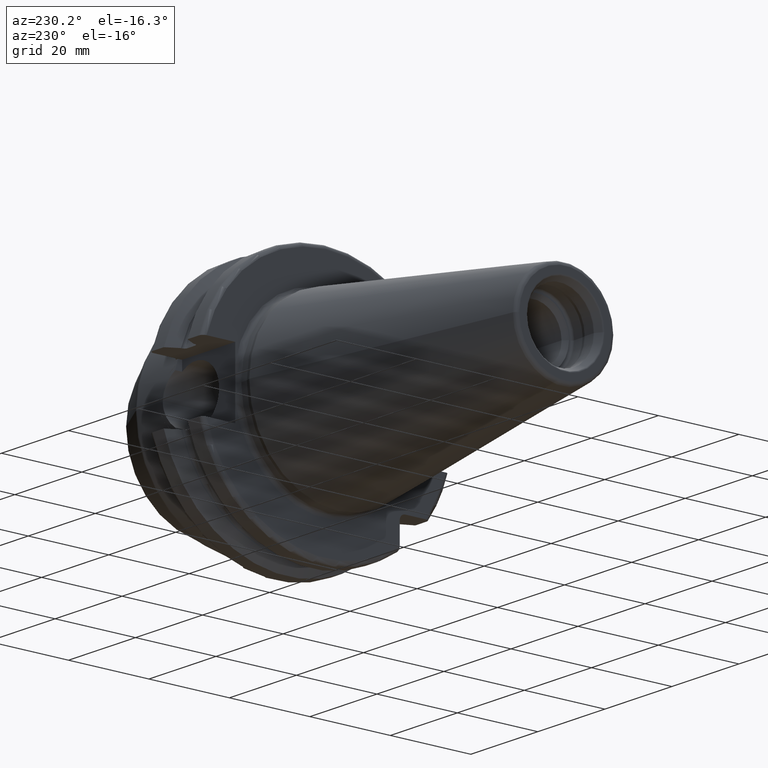
[diagram: clean part render]
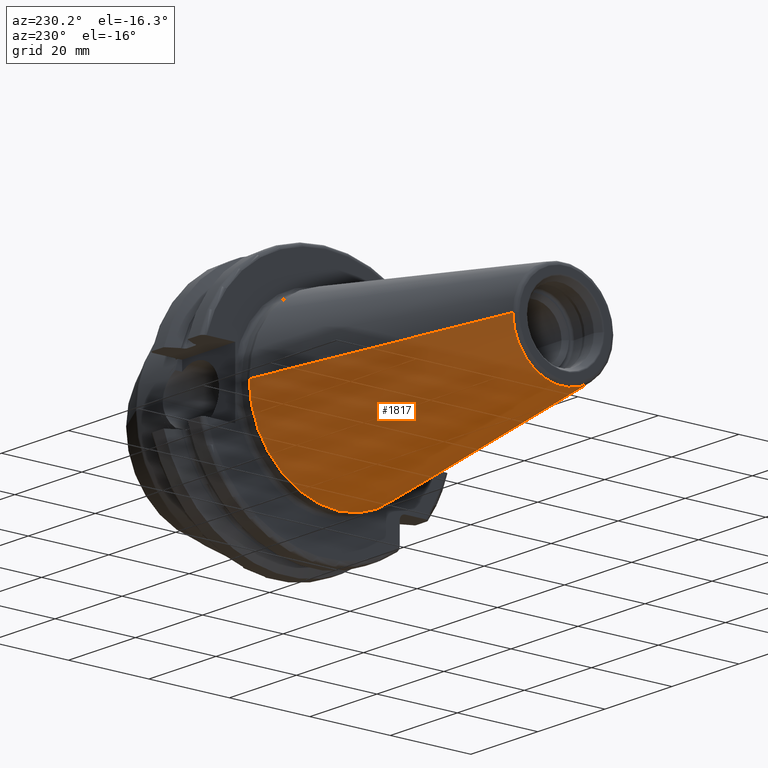
[diagram: same view with one face highlighted and labeled with its STEP entity id]
A machine part, auxiliary view. The second image highlights one B-rep face of the part: STEP entity #1817.
In plain terms, the highlighted conical surface has half-angle 8.298 deg.
Its self-contained STEP definition (entity closure, byte-faithful):
#32=CARTESIAN_POINT('',(-6.743710273571E1,0.E0,0.E0));
#33=DIRECTION('',(-1.E0,0.E0,0.E0));
#34=DIRECTION('',(0.E0,1.E0,0.E0));
#35=AXIS2_PLACEMENT_3D('',#32,#33,#34);
#47=DIRECTION('',(-9.895312636440E-1,-1.443186691705E-1,0.E0));
#48=VECTOR('',#47,6.765568998391E1);
#49=CARTESIAN_POINT('',(-4.896823332305E-1,2.215358204157E1,0.E0));
#50=LINE('',#49,#48);
#51=DIRECTION('',(-9.895312636440E-1,1.443186691705E-1,0.E0));
#52=VECTOR('',#51,6.765568998391E1);
#53=CARTESIAN_POINT('',(-4.896823332305E-1,-2.215358204157E1,0.E0));
#54=LINE('',#53,#52);
#55=CARTESIAN_POINT('',(-4.896823332305E-1,0.E0,0.E0));
#56=DIRECTION('',(-1.E0,0.E0,0.E0));
#57=DIRECTION('',(0.E0,1.E0,0.E0));
#58=AXIS2_PLACEMENT_3D('',#55,#56,#57);
#1463=CARTESIAN_POINT('',(-6.743710273571E1,1.238960290128E1,0.E0));
#1465=VERTEX_POINT('',#1463);
#1467=CARTESIAN_POINT('',(-6.743710273571E1,-1.238960290128E1,0.E0));
#1469=VERTEX_POINT('',#1467);
#1525=CARTESIAN_POINT('',(-4.896823332305E-1,2.215358204157E1,0.E0));
#1526=VERTEX_POINT('',#1525);
#1527=CARTESIAN_POINT('',(-4.896823332305E-1,-2.215358204157E1,0.E0));
#1528=VERTEX_POINT('',#1527);
#1805=CARTESIAN_POINT('',(-3.396339253447E1,0.E0,0.E0));
#1806=DIRECTION('',(1.E0,0.E0,0.E0));
#1807=DIRECTION('',(0.E0,-1.E0,0.E0));
#1808=AXIS2_PLACEMENT_3D('',#1805,#1806,#1807);
#1809=CONICAL_SURFACE('',#1808,1.727159247143E1,8.297826828206E0);
#1810=ORIENTED_EDGE('',*,*,#1795,.T.);
#1811=ORIENTED_EDGE('',*,*,#1772,.T.);
#1812=ORIENTED_EDGE('',*,*,#1799,.F.);
#1814=ORIENTED_EDGE('',*,*,#1813,.F.);
#1815=EDGE_LOOP('',(#1810,#1811,#1812,#1814));
#1816=FACE_OUTER_BOUND('',#1815,.F.);
#1817=ADVANCED_FACE('',(#1816),#1809,.T.);
#36=CIRCLE('',#35,1.238960290128E1);
#59=CIRCLE('',#58,2.215358204157E1);
#1772=EDGE_CURVE('',#1465,#1469,#36,.T.);
#1795=EDGE_CURVE('',#1526,#1465,#50,.T.);
#1799=EDGE_CURVE('',#1528,#1469,#54,.T.);
#1813=EDGE_CURVE('',#1526,#1528,#59,.T.);